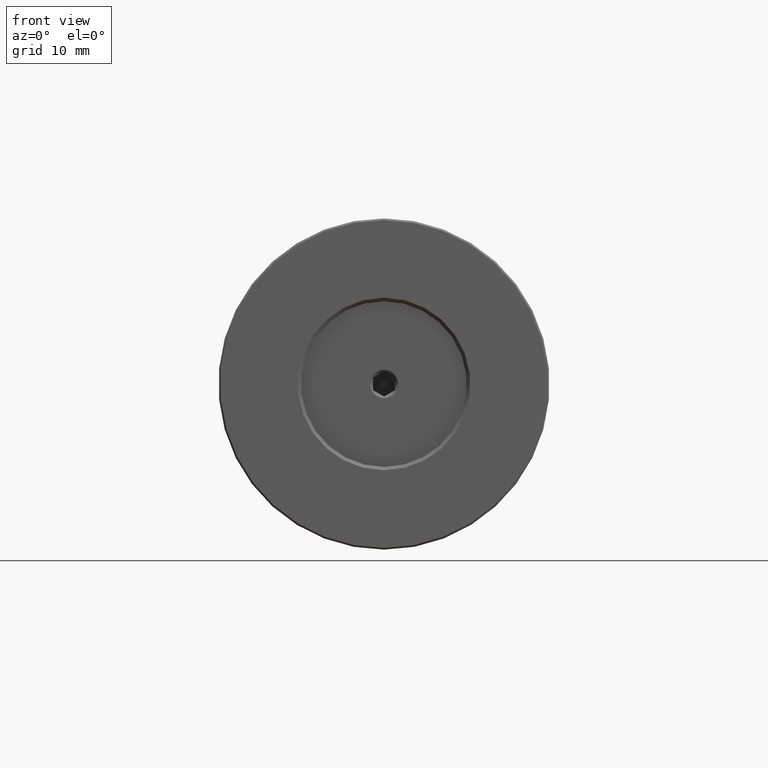
[diagram: clean part render]
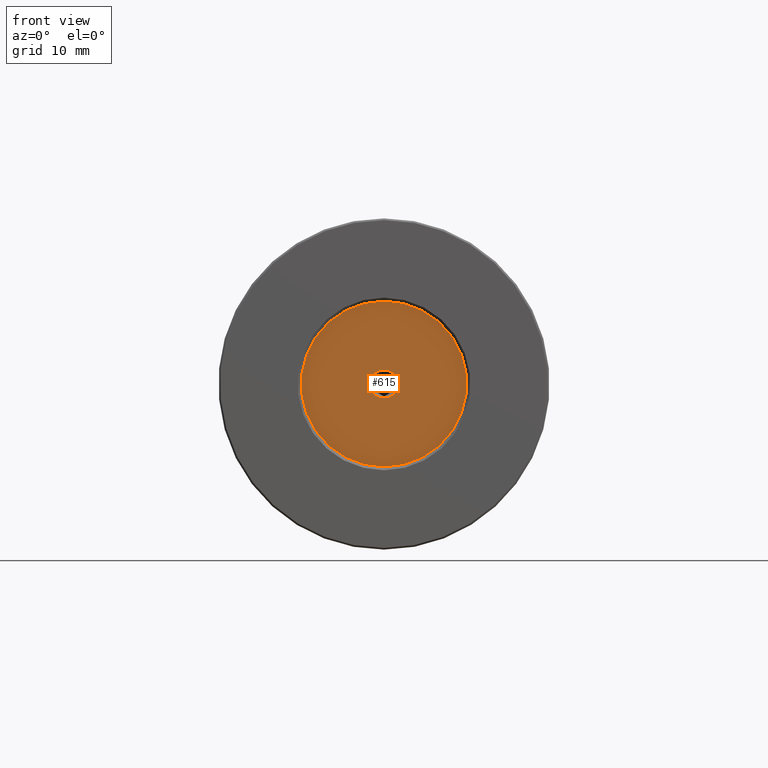
[diagram: same view with one face highlighted and labeled with its STEP entity id]
A machine part, front view. The second image highlights one B-rep face of the part: STEP entity #615.
In plain terms, the highlighted planar face has unit normal (0, -1, 0).
Its self-contained STEP definition (entity closure, byte-faithful):
#112 = EDGE_CURVE ( 'NONE', #1327, #6437, #2079, .T. ) ;
#615 = ADVANCED_FACE ( 'NONE', ( #9984, #6101 ), #7206, .T. ) ;
#721 = DIRECTION ( 'NONE',  ( 0.000000000000000000, -0.000000000000000000, -1.000000000000000000 ) ) ;
#734 = EDGE_LOOP ( 'NONE', ( #10297, #5380 ) ) ;
#910 = CARTESIAN_POINT ( 'NONE',  ( 0.000000000000000000, 0.5000000000000000000, 0.000000000000000000 ) ) ;
#1327 = VERTEX_POINT ( 'NONE', #6267 ) ;
#1576 = CARTESIAN_POINT ( 'NONE',  ( 0.000000000000000000, 0.5000000000000000000, 0.000000000000000000 ) ) ;
#1657 = ORIENTED_EDGE ( 'NONE', *, *, #6601, .F. ) ;
#1889 = AXIS2_PLACEMENT_3D ( 'NONE', #910, #8324, #6584 ) ;
#2079 = CIRCLE ( 'NONE', #1889, 2.000000000000000000 ) ;
#2598 = AXIS2_PLACEMENT_3D ( 'NONE', #3766, #7326, #2789 ) ;
#2789 = DIRECTION ( 'NONE',  ( 0.000000000000000000, 0.000000000000000000, -1.000000000000000000 ) ) ;
#3766 = CARTESIAN_POINT ( 'NONE',  ( 0.000000000000000000, 0.5000000000000000000, 0.000000000000000000 ) ) ;
#3817 = EDGE_LOOP ( 'NONE', ( #6214, #1657 ) ) ;
#3935 = DIRECTION ( 'NONE',  ( 0.000000000000000000, -1.000000000000000000, 0.000000000000000000 ) ) ;
#4611 = DIRECTION ( 'NONE',  ( 0.000000000000000000, 0.000000000000000000, -1.000000000000000000 ) ) ;
#4729 = CARTESIAN_POINT ( 'NONE',  ( 0.000000000000000000, 0.5000000000000000000, 0.000000000000000000 ) ) ;
#5343 = EDGE_CURVE ( 'NONE', #5464, #7499, #10265, .T. ) ;
#5380 = ORIENTED_EDGE ( 'NONE', *, *, #9522, .T. ) ;
#5410 = DIRECTION ( 'NONE',  ( 0.000000000000000000, -1.000000000000000000, 0.000000000000000000 ) ) ;
#5426 = CARTESIAN_POINT ( 'NONE',  ( 2.449293598294706414E-16, 0.5000000000000000000, 2.000000000000000000 ) ) ;
#5464 = VERTEX_POINT ( 'NONE', #12113 ) ;
#5942 = CARTESIAN_POINT ( 'NONE',  ( 1.469576158976824736E-15, 0.5000000000000000000, 11.75000000000000178 ) ) ;
#6101 = FACE_OUTER_BOUND ( 'NONE', #734, .T. ) ;
#6214 = ORIENTED_EDGE ( 'NONE', *, *, #112, .F. ) ;
#6267 = CARTESIAN_POINT ( 'NONE',  ( 0.000000000000000000, 0.5000000000000000000, -2.000000000000000000 ) ) ;
#6324 = CARTESIAN_POINT ( 'NONE',  ( 0.000000000000000000, 0.5000000000000000000, 0.000000000000000000 ) ) ;
#6437 = VERTEX_POINT ( 'NONE', #5426 ) ;
#6584 = DIRECTION ( 'NONE',  ( 0.000000000000000000, 0.000000000000000000, -1.000000000000000000 ) ) ;
#6601 = EDGE_CURVE ( 'NONE', #6437, #1327, #7479, .T. ) ;
#7206 = PLANE ( 'NONE',  #7955 ) ;
#7326 = DIRECTION ( 'NONE',  ( 0.000000000000000000, -1.000000000000000000, 0.000000000000000000 ) ) ;
#7479 = CIRCLE ( 'NONE', #2598, 2.000000000000000000 ) ;
#7499 = VERTEX_POINT ( 'NONE', #5942 ) ;
#7609 = CIRCLE ( 'NONE', #9199, 11.75000000000000178 ) ;
#7955 = AXIS2_PLACEMENT_3D ( 'NONE', #1576, #11030, #721 ) ;
#8324 = DIRECTION ( 'NONE',  ( 0.000000000000000000, -1.000000000000000000, 0.000000000000000000 ) ) ;
#9199 = AXIS2_PLACEMENT_3D ( 'NONE', #6324, #5410, #10261 ) ;
#9522 = EDGE_CURVE ( 'NONE', #7499, #5464, #7609, .T. ) ;
#9984 = FACE_BOUND ( 'NONE', #3817, .T. ) ;
#10261 = DIRECTION ( 'NONE',  ( 0.000000000000000000, 0.000000000000000000, -1.000000000000000000 ) ) ;
#10265 = CIRCLE ( 'NONE', #11446, 11.75000000000000178 ) ;
#10297 = ORIENTED_EDGE ( 'NONE', *, *, #5343, .T. ) ;
#11030 = DIRECTION ( 'NONE',  ( 0.000000000000000000, -1.000000000000000000, 0.000000000000000000 ) ) ;
#11446 = AXIS2_PLACEMENT_3D ( 'NONE', #4729, #3935, #4611 ) ;
#12113 = CARTESIAN_POINT ( 'NONE',  ( 0.000000000000000000, 0.5000000000000000000, -11.75000000000000178 ) ) ;